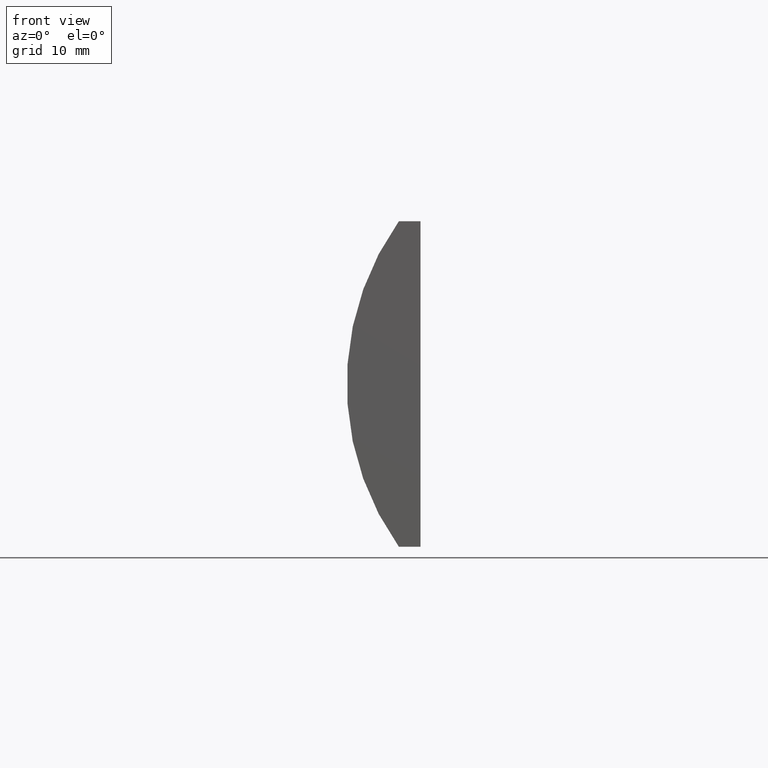
[diagram: clean part render]
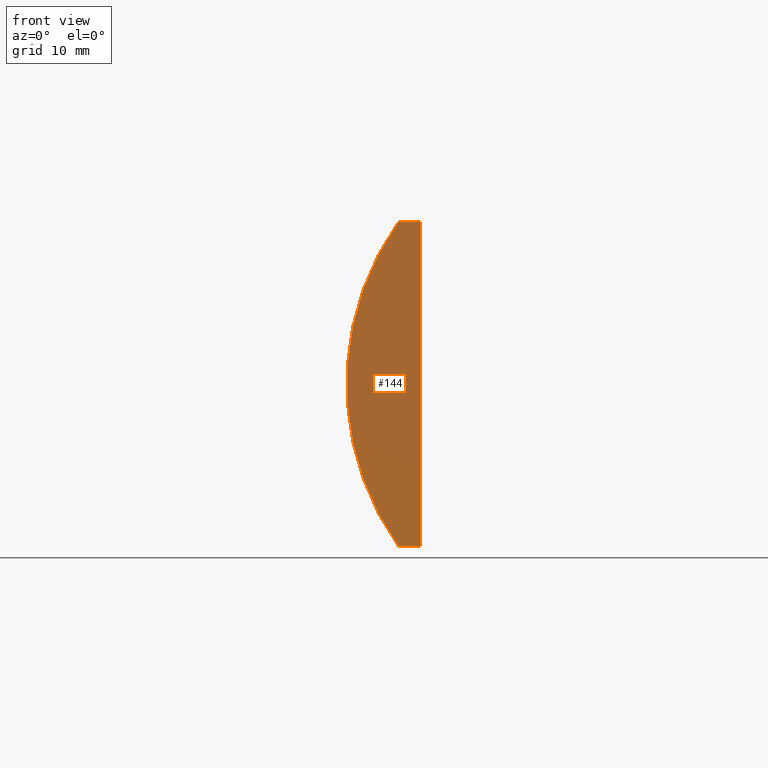
[diagram: same view with one face highlighted and labeled with its STEP entity id]
A machine part, front view. The second image highlights one B-rep face of the part: STEP entity #144.
In plain terms, the highlighted planar face has unit normal (0, 1, 0).
Its self-contained STEP definition (entity closure, byte-faithful):
#5 = EDGE_LOOP ( 'NONE', ( #51, #196, #179, #7 ) ) ;
#6 = DIRECTION ( 'NONE',  ( -1.000000000000000000, -0.0000000000000000000, -0.0000000000000000000 ) ) ;
#7 = ORIENTED_EDGE ( 'NONE', *, *, #157, .F. ) ;
#13 = DIRECTION ( 'NONE',  ( -2.891205793294678800E-016, -0.0000000000000000000, -1.000000000000000000 ) ) ;
#17 = AXIS2_PLACEMENT_3D ( 'NONE', #182, #78, #48 ) ;
#22 = VECTOR ( 'NONE', #6, 1000.000000000000000 ) ;
#26 = FACE_OUTER_BOUND ( 'NONE', #5, .T. ) ;
#30 = DIRECTION ( 'NONE',  ( 1.000000000000000000, 0.0000000000000000000, 0.0000000000000000000 ) ) ;
#31 = LINE ( 'NONE', #129, #64 ) ;
#41 = VECTOR ( 'NONE', #13, 1000.000000000000000 ) ;
#48 = DIRECTION ( 'NONE',  ( 0.0000000000000000000, -0.0000000000000000000, 1.000000000000000000 ) ) ;
#51 = ORIENTED_EDGE ( 'NONE', *, *, #116, .F. ) ;
#57 = LINE ( 'NONE', #105, #22 ) ;
#64 = VECTOR ( 'NONE', #30, 1000.000000000000000 ) ;
#66 = EDGE_CURVE ( 'NONE', #95, #146, #57, .T. ) ;
#69 = DIRECTION ( 'NONE',  ( 0.0000000000000000000, 1.000000000000000000, 0.0000000000000000000 ) ) ;
#76 = CARTESIAN_POINT ( 'NONE',  ( 4.355204334851265500, 0.0000000000000000000, 4.286263797015675000E-017 ) ) ;
#78 = DIRECTION ( 'NONE',  ( 0.0000000000000000000, 1.000000000000000000, 0.0000000000000000000 ) ) ;
#84 = CARTESIAN_POINT ( 'NONE',  ( -14.69479566514874200, 0.0000000000000000000, -15.00000000000000000 ) ) ;
#86 = CARTESIAN_POINT ( 'NONE',  ( -16.69764582848766200, 0.0000000000000000000, -15.00000000000000000 ) ) ;
#95 = VERTEX_POINT ( 'NONE', #84 ) ;
#105 = CARTESIAN_POINT ( 'NONE',  ( -16.69764582848766200, 0.0000000000000000000, -15.00000000000000000 ) ) ;
#112 = LINE ( 'NONE', #160, #41 ) ;
#116 = EDGE_CURVE ( 'NONE', #146, #168, #143, .T. ) ;
#118 = AXIS2_PLACEMENT_3D ( 'NONE', #76, #69, #192 ) ;
#121 = PLANE ( 'NONE',  #17 ) ;
#129 = CARTESIAN_POINT ( 'NONE',  ( -16.69764582848766200, 0.0000000000000000000, 15.00000000000000000 ) ) ;
#143 = CIRCLE ( 'NONE', #118, 25.84999999999999800 ) ;
#144 = ADVANCED_FACE ( 'NONE', ( #26 ), #121, .F. ) ;
#146 = VERTEX_POINT ( 'NONE', #86 ) ;
#157 = EDGE_CURVE ( 'NONE', #168, #186, #31, .T. ) ;
#160 = CARTESIAN_POINT ( 'NONE',  ( -14.69479566514874200, 0.0000000000000000000, -15.00000000000000000 ) ) ;
#163 = CARTESIAN_POINT ( 'NONE',  ( -16.69764582848766200, 0.0000000000000000000, 15.00000000000000000 ) ) ;
#164 = EDGE_CURVE ( 'NONE', #186, #95, #112, .T. ) ;
#168 = VERTEX_POINT ( 'NONE', #163 ) ;
#179 = ORIENTED_EDGE ( 'NONE', *, *, #164, .F. ) ;
#182 = CARTESIAN_POINT ( 'NONE',  ( 4.355204334851265500, 0.0000000000000000000, 4.286263797015675000E-017 ) ) ;
#184 = CARTESIAN_POINT ( 'NONE',  ( -14.69479566514873300, 0.0000000000000000000, 15.00000000000000000 ) ) ;
#186 = VERTEX_POINT ( 'NONE', #184 ) ;
#192 = DIRECTION ( 'NONE',  ( 0.0000000000000000000, 0.0000000000000000000, 1.000000000000000000 ) ) ;
#196 = ORIENTED_EDGE ( 'NONE', *, *, #66, .F. ) ;